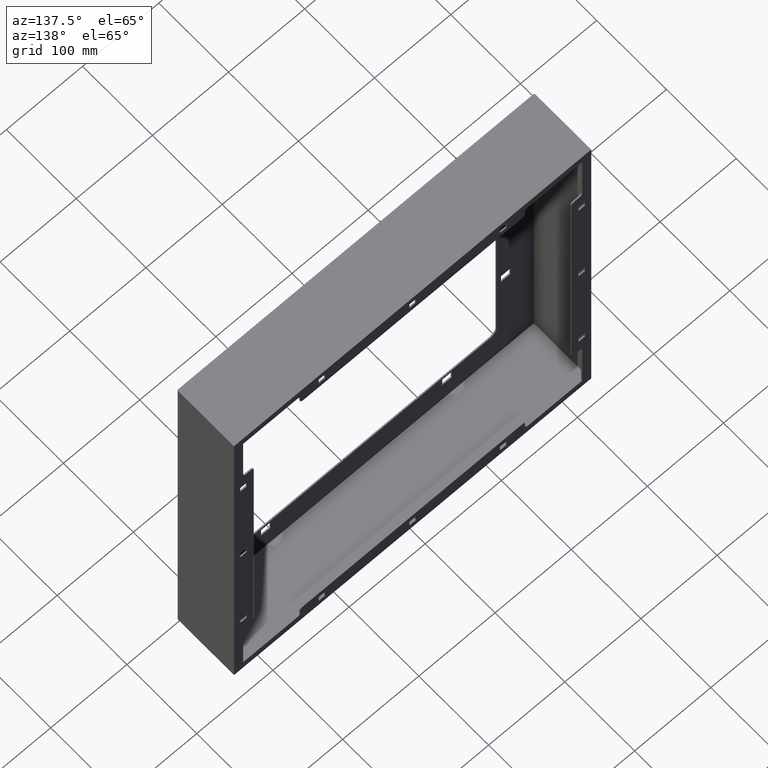
[diagram: clean part render]
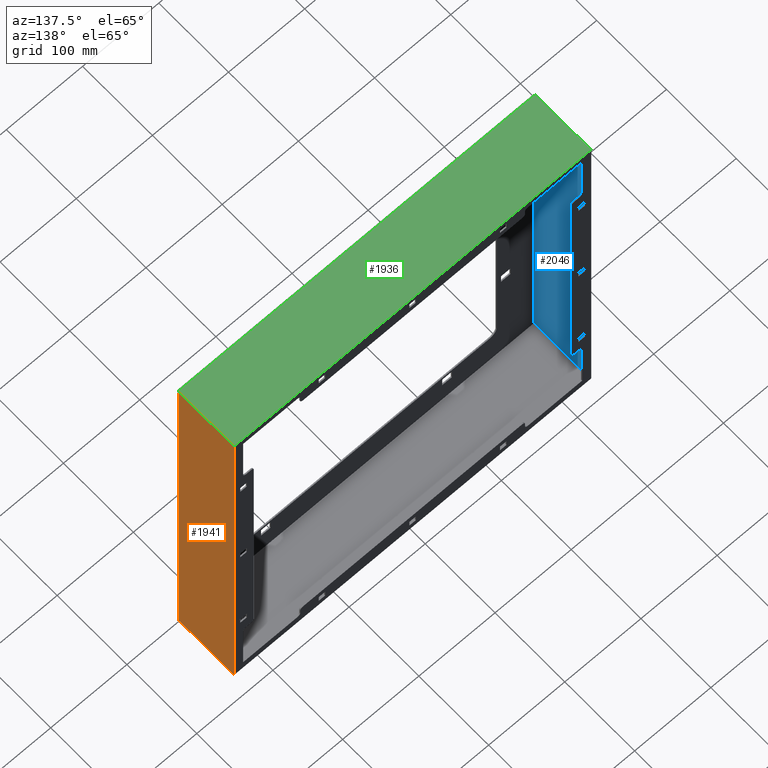
[diagram: same view with three faces highlighted in distinct colors, each labeled with its STEP entity id]
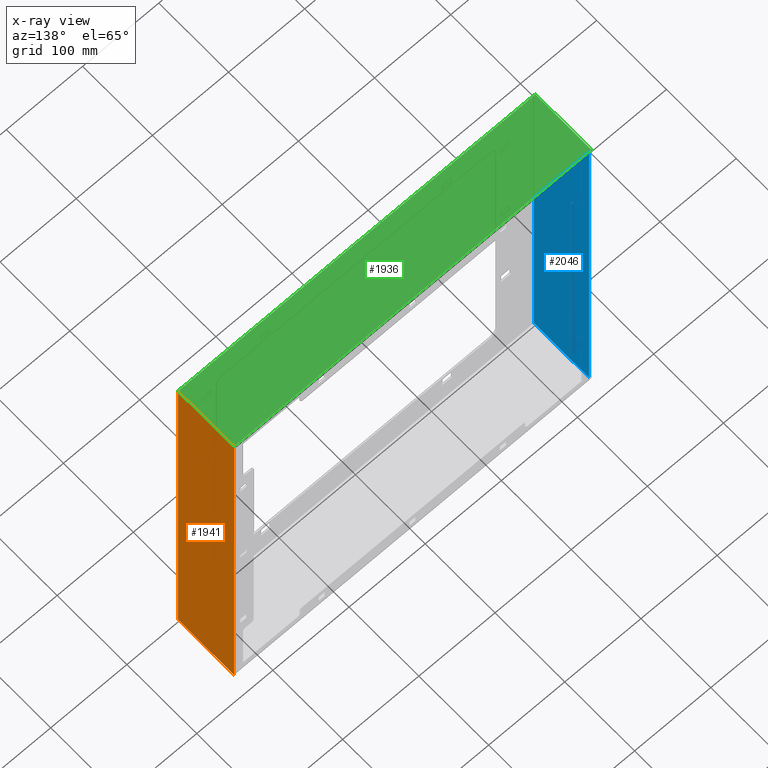
[diagram: x-ray of the same camera — body ghosted, the three highlighted faces saturated]
A machine part, auxiliary view with three faces highlighted in distinct colors.
The next image is the same camera in x-ray (body ghosted, the three faces saturated) — at least one of them is partly hidden behind the body in this view.
Their STEP definitions:

[orange] entity #1941 — the highlighted planar face has unit normal (-1, 0, 0).
#12 = CARTESIAN_POINT ( 'NONE',  ( 234.5000000000000300, 1.999999999999988000, 262.0000000000000000 ) ) ;
#117 = CARTESIAN_POINT ( 'NONE',  ( 234.5000000000000000, 82.00000000000000000, -262.0000000000000000 ) ) ;
#129 = CARTESIAN_POINT ( 'NONE',  ( 234.5000000000000000, 1.999999999999988000, -262.0000000000000000 ) ) ;
#133 = CARTESIAN_POINT ( 'NONE',  ( 234.5000000000000300, 82.00000000000000000, 262.0000000000000000 ) ) ;
#258 = CARTESIAN_POINT ( 'NONE',  ( 234.5000000000000300, 82.00000000000000000, 262.0000000000000000 ) ) ;
#495 = CARTESIAN_POINT ( 'NONE',  ( 234.5000000000000300, 82.00000000000000000, 262.0000000000000000 ) ) ;
#499 = DIRECTION ( 'NONE',  ( -0.0000000000000000000, -1.000000000000000000, -0.0000000000000000000 ) ) ;
#517 = VERTEX_POINT ( 'NONE', #117 ) ;
#518 = VERTEX_POINT ( 'NONE', #129 ) ;
#520 = VERTEX_POINT ( 'NONE', #133 ) ;
#521 = VERTEX_POINT ( 'NONE', #12 ) ;
#554 = CARTESIAN_POINT ( 'NONE',  ( 234.5000000000000000, 2.000000000000001800, -262.0000000000000000 ) ) ;
#555 = DIRECTION ( 'NONE',  ( -1.059373115100340100E-016, 0.0000000000000000000, -1.000000000000000000 ) ) ;
#1173 = ORIENTED_EDGE ( 'NONE', *, *, #1857, .F. ) ;
#1178 = ORIENTED_EDGE ( 'NONE', *, *, #4313, .F. ) ;
#1181 = ORIENTED_EDGE ( 'NONE', *, *, #2962, .T. ) ;
#1184 = ORIENTED_EDGE ( 'NONE', *, *, #2943, .T. ) ;
#1215 = PLANE ( 'NONE',  #1630 ) ;
#1217 = CARTESIAN_POINT ( 'NONE',  ( 234.5000000000000300, 82.00000000000000000, 262.0000000000000000 ) ) ;
#1224 = DIRECTION ( 'NONE',  ( -1.000000000000000000, 0.0000000000000000000, 1.059373115100340100E-016 ) ) ;
#1226 = DIRECTION ( 'NONE',  ( 1.059373115100340100E-016, 0.0000000000000000000, 1.000000000000000000 ) ) ;
#1630 = AXIS2_PLACEMENT_3D ( 'NONE', #1217, #1224, #1226 ) ;
#1857 = EDGE_CURVE ( 'NONE', #520, #517, #3643, .T. ) ;
#1941 = ADVANCED_FACE ( 'NONE', ( #3791 ), #1215, .F. ) ;
#2778 = CARTESIAN_POINT ( 'NONE',  ( 234.5000000000000000, 82.00000000000000000, -262.0000000000000000 ) ) ;
#2779 = DIRECTION ( 'NONE',  ( -0.0000000000000000000, -1.000000000000000000, -0.0000000000000000000 ) ) ;
#2943 = EDGE_CURVE ( 'NONE', #520, #521, #3399, .T. ) ;
#2962 = EDGE_CURVE ( 'NONE', #521, #518, #3436, .T. ) ;
#3261 = LINE ( 'NONE', #2778, #3264 ) ;
#3264 = VECTOR ( 'NONE', #2779, 1000.000000000000000 ) ;
#3399 = LINE ( 'NONE', #495, #3402 ) ;
#3402 = VECTOR ( 'NONE', #499, 1000.000000000000000 ) ;
#3436 = LINE ( 'NONE', #554, #3439 ) ;
#3439 = VECTOR ( 'NONE', #555, 1000.000000000000000 ) ;
#3643 = LINE ( 'NONE', #258, #3648 ) ;
#3648 = VECTOR ( 'NONE', #4209, 1000.000000000000000 ) ;
#3791 = FACE_OUTER_BOUND ( 'NONE', #4499, .T. ) ;
#4209 = DIRECTION ( 'NONE',  ( -1.059373115100340100E-016, 0.0000000000000000000, -1.000000000000000000 ) ) ;
#4313 = EDGE_CURVE ( 'NONE', #517, #518, #3261, .T. ) ;
#4499 = EDGE_LOOP ( 'NONE', ( #1184, #1181, #1178, #1173 ) ) ;

[blue] entity #2046 — the highlighted planar face has unit normal (1, -0, 0).
#21 = CARTESIAN_POINT ( 'NONE',  ( -232.9999999999999700, 80.50000000000000000, -262.0000000000000000 ) ) ;
#70 = DIRECTION ( 'NONE',  ( -1.059373115100340100E-016, 0.0000000000000000000, 1.000000000000000000 ) ) ;
#348 = PLANE ( 'NONE',  #2097 ) ;
#349 = CARTESIAN_POINT ( 'NONE',  ( -233.0000000000000300, 82.00000000000000000, 262.0000000000000000 ) ) ;
#354 = DIRECTION ( 'NONE',  ( 1.000000000000000000, -0.0000000000000000000, 1.059373115100340100E-016 ) ) ;
#355 = DIRECTION ( 'NONE',  ( 1.059373115100340100E-016, 0.0000000000000000000, -1.000000000000000000 ) ) ;
#667 = CARTESIAN_POINT ( 'NONE',  ( -232.9999999999999700, 1.500000000000000000, -262.0000000000000000 ) ) ;
#668 = DIRECTION ( 'NONE',  ( -1.059373115100340100E-016, 0.0000000000000000000, 1.000000000000000000 ) ) ;
#681 = CARTESIAN_POINT ( 'NONE',  ( -233.0000000000000300, 82.00000000000000000, 260.5000000000000000 ) ) ;
#682 = DIRECTION ( 'NONE',  ( 0.0000000000000000000, -1.000000000000000000, 0.0000000000000000000 ) ) ;
#695 = CARTESIAN_POINT ( 'NONE',  ( -232.9999999999999700, 82.00000000000000000, -260.4999999999999400 ) ) ;
#696 = DIRECTION ( 'NONE',  ( 0.0000000000000000000, -1.000000000000000000, 0.0000000000000000000 ) ) ;
#848 = EDGE_CURVE ( 'NONE', #1101, #4219, #4784, .T. ) ;
#1101 = VERTEX_POINT ( 'NONE', #2522 ) ;
#1107 = VERTEX_POINT ( 'NONE', #2445 ) ;
#1109 = VERTEX_POINT ( 'NONE', #2446 ) ;
#2046 = ADVANCED_FACE ( 'NONE', ( #3355 ), #348, .T. ) ;
#2097 = AXIS2_PLACEMENT_3D ( 'NONE', #349, #354, #355 ) ;
#2445 = CARTESIAN_POINT ( 'NONE',  ( -233.0000000000000300, 1.500000000000000000, 260.5000000000000000 ) ) ;
#2446 = CARTESIAN_POINT ( 'NONE',  ( -232.9999999999999700, 1.500000000000000000, -260.5000000000000000 ) ) ;
#2522 = CARTESIAN_POINT ( 'NONE',  ( -232.9999999999999700, 80.50000000000000000, -260.5000000000000000 ) ) ;
#2663 = CARTESIAN_POINT ( 'NONE',  ( -233.0000000000000300, 80.50000000000000000, 260.5000000000000000 ) ) ;
#3015 = ORIENTED_EDGE ( 'NONE', *, *, #4009, .T. ) ;
#3016 = ORIENTED_EDGE ( 'NONE', *, *, #848, .T. ) ;
#3017 = ORIENTED_EDGE ( 'NONE', *, *, #4016, .F. ) ;
#3355 = FACE_OUTER_BOUND ( 'NONE', #4459, .T. ) ;
#3552 = LINE ( 'NONE', #667, #3555 ) ;
#3555 = VECTOR ( 'NONE', #668, 1000.000000000000000 ) ;
#3566 = LINE ( 'NONE', #681, #3569 ) ;
#3569 = VECTOR ( 'NONE', #682, 1000.000000000000000 ) ;
#3580 = LINE ( 'NONE', #695, #3583 ) ;
#3583 = VECTOR ( 'NONE', #696, 1000.000000000000000 ) ;
#4002 = EDGE_CURVE ( 'NONE', #1109, #1107, #3552, .T. ) ;
#4009 = EDGE_CURVE ( 'NONE', #4219, #1107, #3566, .T. ) ;
#4016 = EDGE_CURVE ( 'NONE', #1101, #1109, #3580, .T. ) ;
#4219 = VERTEX_POINT ( 'NONE', #2663 ) ;
#4363 = ORIENTED_EDGE ( 'NONE', *, *, #4002, .F. ) ;
#4459 = EDGE_LOOP ( 'NONE', ( #4363, #3017, #3016, #3015 ) ) ;
#4784 = LINE ( 'NONE', #21, #4794 ) ;
#4794 = VECTOR ( 'NONE', #70, 1000.000000000000000 ) ;

[green] entity #1936 — the highlighted planar face has unit normal (0, 0, -1).
#12 = CARTESIAN_POINT ( 'NONE',  ( 234.5000000000000300, 1.999999999999988000, 262.0000000000000000 ) ) ;
#127 = CARTESIAN_POINT ( 'NONE',  ( -234.5000000000000300, 82.00000000000000000, 262.0000000000000000 ) ) ;
#130 = CARTESIAN_POINT ( 'NONE',  ( -234.5000000000000300, 1.999999999999988000, 262.0000000000000000 ) ) ;
#133 = CARTESIAN_POINT ( 'NONE',  ( 234.5000000000000300, 82.00000000000000000, 262.0000000000000000 ) ) ;
#495 = CARTESIAN_POINT ( 'NONE',  ( 234.5000000000000300, 82.00000000000000000, 262.0000000000000000 ) ) ;
#499 = DIRECTION ( 'NONE',  ( -0.0000000000000000000, -1.000000000000000000, -0.0000000000000000000 ) ) ;
#504 = CARTESIAN_POINT ( 'NONE',  ( 234.5000000000000300, 2.000000000000001800, 262.0000000000000000 ) ) ;
#508 = DIRECTION ( 'NONE',  ( 1.000000000000000000, 0.0000000000000000000, 0.0000000000000000000 ) ) ;
#520 = VERTEX_POINT ( 'NONE', #133 ) ;
#521 = VERTEX_POINT ( 'NONE', #12 ) ;
#524 = VERTEX_POINT ( 'NONE', #130 ) ;
#526 = VERTEX_POINT ( 'NONE', #127 ) ;
#528 = CARTESIAN_POINT ( 'NONE',  ( -234.5000000000000300, 82.00000000000000000, 262.0000000000000000 ) ) ;
#534 = DIRECTION ( 'NONE',  ( 1.000000000000000000, 0.0000000000000000000, 0.0000000000000000000 ) ) ;
#548 = CARTESIAN_POINT ( 'NONE',  ( -234.5000000000000300, 82.00000000000000000, 262.0000000000000000 ) ) ;
#549 = DIRECTION ( 'NONE',  ( -0.0000000000000000000, -1.000000000000000000, -0.0000000000000000000 ) ) ;
#1115 = ORIENTED_EDGE ( 'NONE', *, *, #2945, .T. ) ;
#1119 = ORIENTED_EDGE ( 'NONE', *, *, #2959, .T. ) ;
#1159 = PLANE ( 'NONE',  #4190 ) ;
#1163 = CARTESIAN_POINT ( 'NONE',  ( -234.5000000000000300, 82.00000000000000000, 262.0000000000000000 ) ) ;
#1176 = DIRECTION ( 'NONE',  ( 0.0000000000000000000, 0.0000000000000000000, -1.000000000000000000 ) ) ;
#1179 = DIRECTION ( 'NONE',  ( -1.000000000000000000, 0.0000000000000000000, -0.0000000000000000000 ) ) ;
#1187 = ORIENTED_EDGE ( 'NONE', *, *, #2952, .F. ) ;
#1190 = ORIENTED_EDGE ( 'NONE', *, *, #2943, .F. ) ;
#1936 = ADVANCED_FACE ( 'NONE', ( #3775 ), #1159, .F. ) ;
#2943 = EDGE_CURVE ( 'NONE', #520, #521, #3399, .T. ) ;
#2945 = EDGE_CURVE ( 'NONE', #524, #521, #3403, .T. ) ;
#2952 = EDGE_CURVE ( 'NONE', #526, #520, #3414, .T. ) ;
#2959 = EDGE_CURVE ( 'NONE', #526, #524, #3430, .T. ) ;
#3399 = LINE ( 'NONE', #495, #3402 ) ;
#3402 = VECTOR ( 'NONE', #499, 1000.000000000000000 ) ;
#3403 = LINE ( 'NONE', #504, #3406 ) ;
#3406 = VECTOR ( 'NONE', #508, 1000.000000000000000 ) ;
#3414 = LINE ( 'NONE', #528, #3419 ) ;
#3419 = VECTOR ( 'NONE', #534, 1000.000000000000000 ) ;
#3430 = LINE ( 'NONE', #548, #3433 ) ;
#3433 = VECTOR ( 'NONE', #549, 1000.000000000000000 ) ;
#3775 = FACE_OUTER_BOUND ( 'NONE', #4460, .T. ) ;
#4190 = AXIS2_PLACEMENT_3D ( 'NONE', #1163, #1176, #1179 ) ;
#4460 = EDGE_LOOP ( 'NONE', ( #1119, #1115, #1190, #1187 ) ) ;